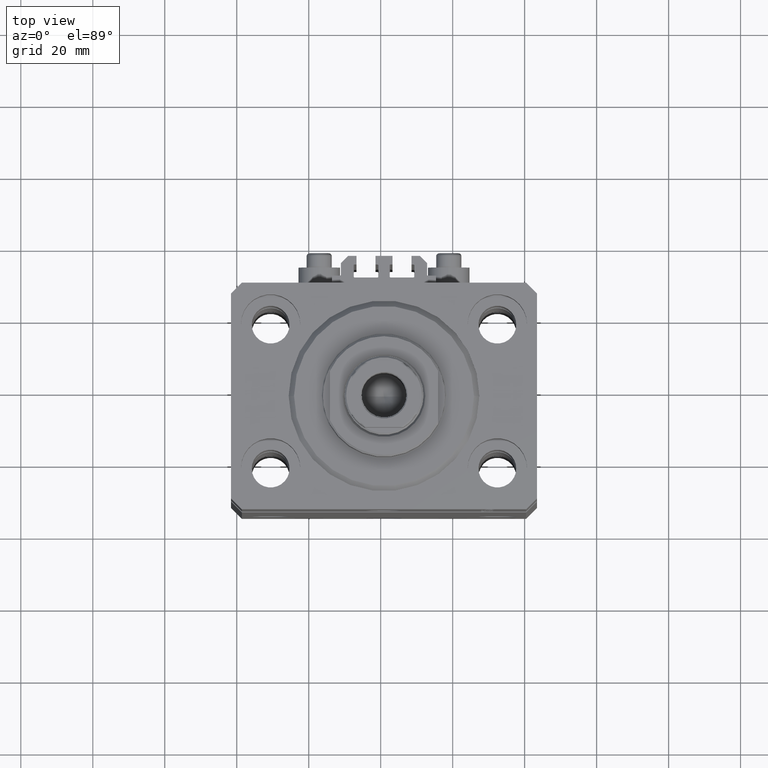
[diagram: clean part render]
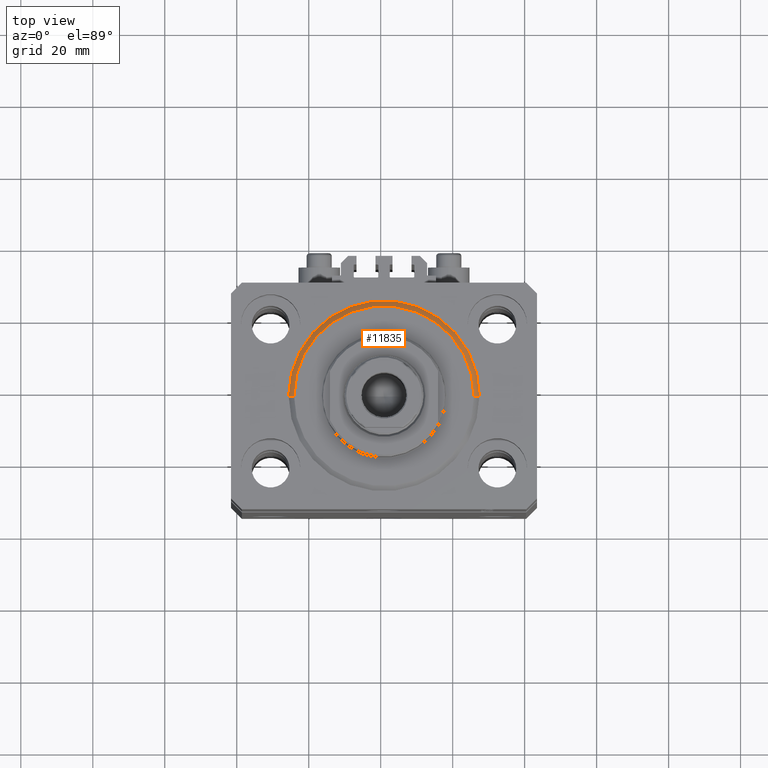
[diagram: same view with one face highlighted and labeled with its STEP entity id]
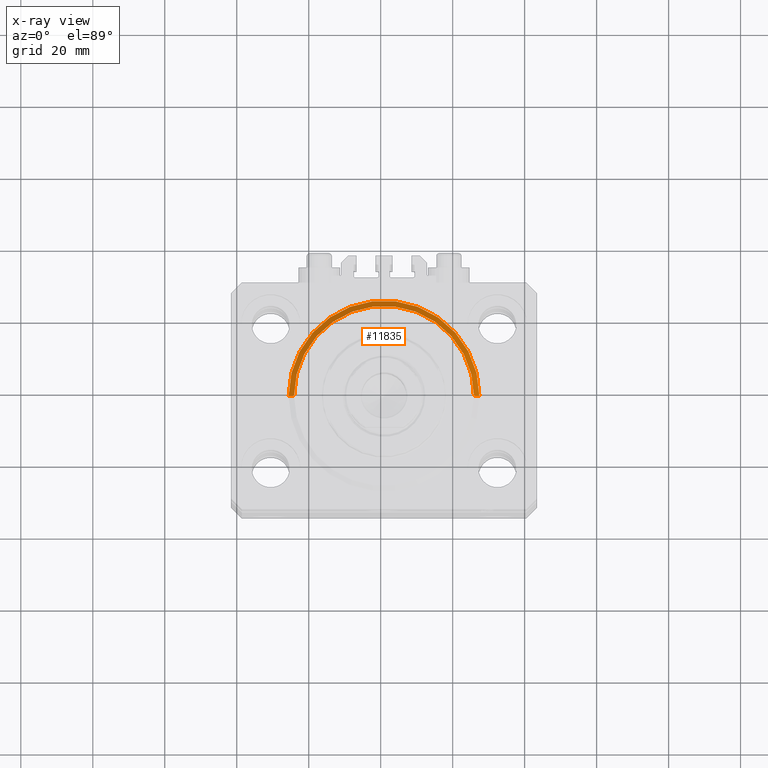
[diagram: x-ray of the same camera — body ghosted, the highlighted face saturated]
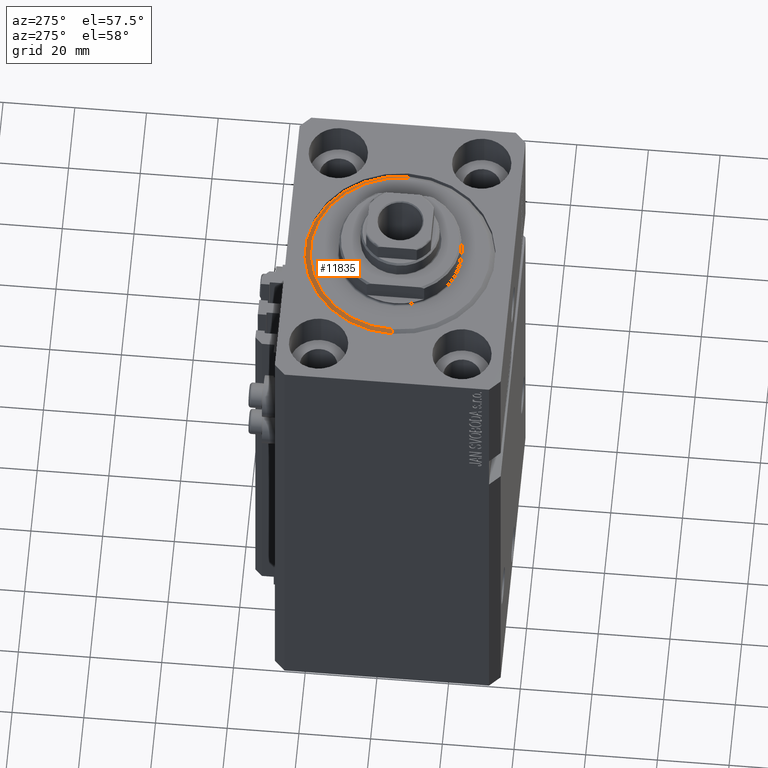
[diagram: same view with one face highlighted and labeled with its STEP entity id]
A machine part, top view. The second image highlights one B-rep face of the part: STEP entity #11835.
The next image is the same camera in x-ray: the body ghosted, the highlighted face saturated — about 0% of this face is hidden behind the body in this view.
A second angle (auxiliary view) of the same face is appended — the face is thin or edge-on in the first view.
In plain terms, the highlighted conical surface has half-angle 45 deg.
Its self-contained STEP definition (entity closure, byte-faithful):
#957 = CARTESIAN_POINT ( 'NONE',  ( 0.000000000000000000, 0.000000000000000000, 0.000000000000000000 ) ) ;
#1538 = DIRECTION ( 'NONE',  ( 1.000000000000000000, 0.000000000000000000, 0.000000000000000000 ) ) ;
#1561 = VERTEX_POINT ( 'NONE', #21213 ) ;
#1873 = CARTESIAN_POINT ( 'NONE',  ( 26.50000000000000355, 3.245314017740486554E-15, 1.500000000000018652 ) ) ;
#4188 = VERTEX_POINT ( 'NONE', #36840 ) ;
#5379 = EDGE_CURVE ( 'NONE', #4188, #11598, #15429, .T. ) ;
#6948 = VECTOR ( 'NONE', #20474, 1000.000000000000000 ) ;
#7086 = CIRCLE ( 'NONE', #31174, 26.50000000000000355 ) ;
#7333 = AXIS2_PLACEMENT_3D ( 'NONE', #957, #16525, #41854 ) ;
#11544 = CARTESIAN_POINT ( 'NONE',  ( 26.50000000000000355, 0.000000000000000000, 1.500000000000018652 ) ) ;
#11598 = VERTEX_POINT ( 'NONE', #1873 ) ;
#11835 = ADVANCED_FACE ( 'NONE', ( #38757 ), #17353, .T. ) ;
#12445 = LINE ( 'NONE', #46043, #6948 ) ;
#15429 = LINE ( 'NONE', #11544, #18805 ) ;
#15487 = EDGE_CURVE ( 'NONE', #1561, #4188, #26764, .T. ) ;
#15603 = CARTESIAN_POINT ( 'NONE',  ( -26.50000000000000355, 0.000000000000000000, 1.500000000000018652 ) ) ;
#16367 = DIRECTION ( 'NONE',  ( -0.000000000000000000, -0.000000000000000000, 1.000000000000000000 ) ) ;
#16525 = DIRECTION ( 'NONE',  ( -0.000000000000000000, -0.000000000000000000, -1.000000000000000000 ) ) ;
#17027 = EDGE_LOOP ( 'NONE', ( #38075, #29793, #44849, #18126 ) ) ;
#17353 = CONICAL_SURFACE ( 'NONE', #41429, 26.50000000000000355, 0.7853981633974495002 ) ;
#18126 = ORIENTED_EDGE ( 'NONE', *, *, #5379, .F. ) ;
#18805 = VECTOR ( 'NONE', #19093, 1000.000000000000000 ) ;
#19093 = DIRECTION ( 'NONE',  ( 0.7071067811865483499, 0.000000000000000000, 0.7071067811865466846 ) ) ;
#20474 = DIRECTION ( 'NONE',  ( -0.7071067811865483499, 8.659560562354942719E-17, 0.7071067811865466846 ) ) ;
#20504 = CARTESIAN_POINT ( 'NONE',  ( 0.000000000000000000, 0.000000000000000000, 1.500000000000018652 ) ) ;
#21213 = CARTESIAN_POINT ( 'NONE',  ( -24.99999999999998224, 3.153465507804433615E-15, 0.000000000000000000 ) ) ;
#24176 = CARTESIAN_POINT ( 'NONE',  ( 0.000000000000000000, 0.000000000000000000, 1.500000000000018652 ) ) ;
#24650 = DIRECTION ( 'NONE',  ( -0.000000000000000000, -0.000000000000000000, 1.000000000000000000 ) ) ;
#26764 = CIRCLE ( 'NONE', #7333, 24.99999999999998224 ) ;
#29793 = ORIENTED_EDGE ( 'NONE', *, *, #37262, .T. ) ;
#31174 = AXIS2_PLACEMENT_3D ( 'NONE', #24176, #24650, #1538 ) ;
#36840 = CARTESIAN_POINT ( 'NONE',  ( 24.99999999999998224, 0.000000000000000000, 0.000000000000000000 ) ) ;
#37262 = EDGE_CURVE ( 'NONE', #1561, #47903, #12445, .T. ) ;
#38075 = ORIENTED_EDGE ( 'NONE', *, *, #15487, .F. ) ;
#38757 = FACE_OUTER_BOUND ( 'NONE', #17027, .T. ) ;
#41429 = AXIS2_PLACEMENT_3D ( 'NONE', #20504, #16367, #45600 ) ;
#41854 = DIRECTION ( 'NONE',  ( 1.000000000000000000, 0.000000000000000000, 0.000000000000000000 ) ) ;
#44849 = ORIENTED_EDGE ( 'NONE', *, *, #45067, .F. ) ;
#45067 = EDGE_CURVE ( 'NONE', #11598, #47903, #7086, .T. ) ;
#45600 = DIRECTION ( 'NONE',  ( 1.000000000000000000, 0.000000000000000000, 0.000000000000000000 ) ) ;
#46043 = CARTESIAN_POINT ( 'NONE',  ( -26.50000000000000355, 3.245314017740486554E-15, 1.500000000000018652 ) ) ;
#47903 = VERTEX_POINT ( 'NONE', #15603 ) ;